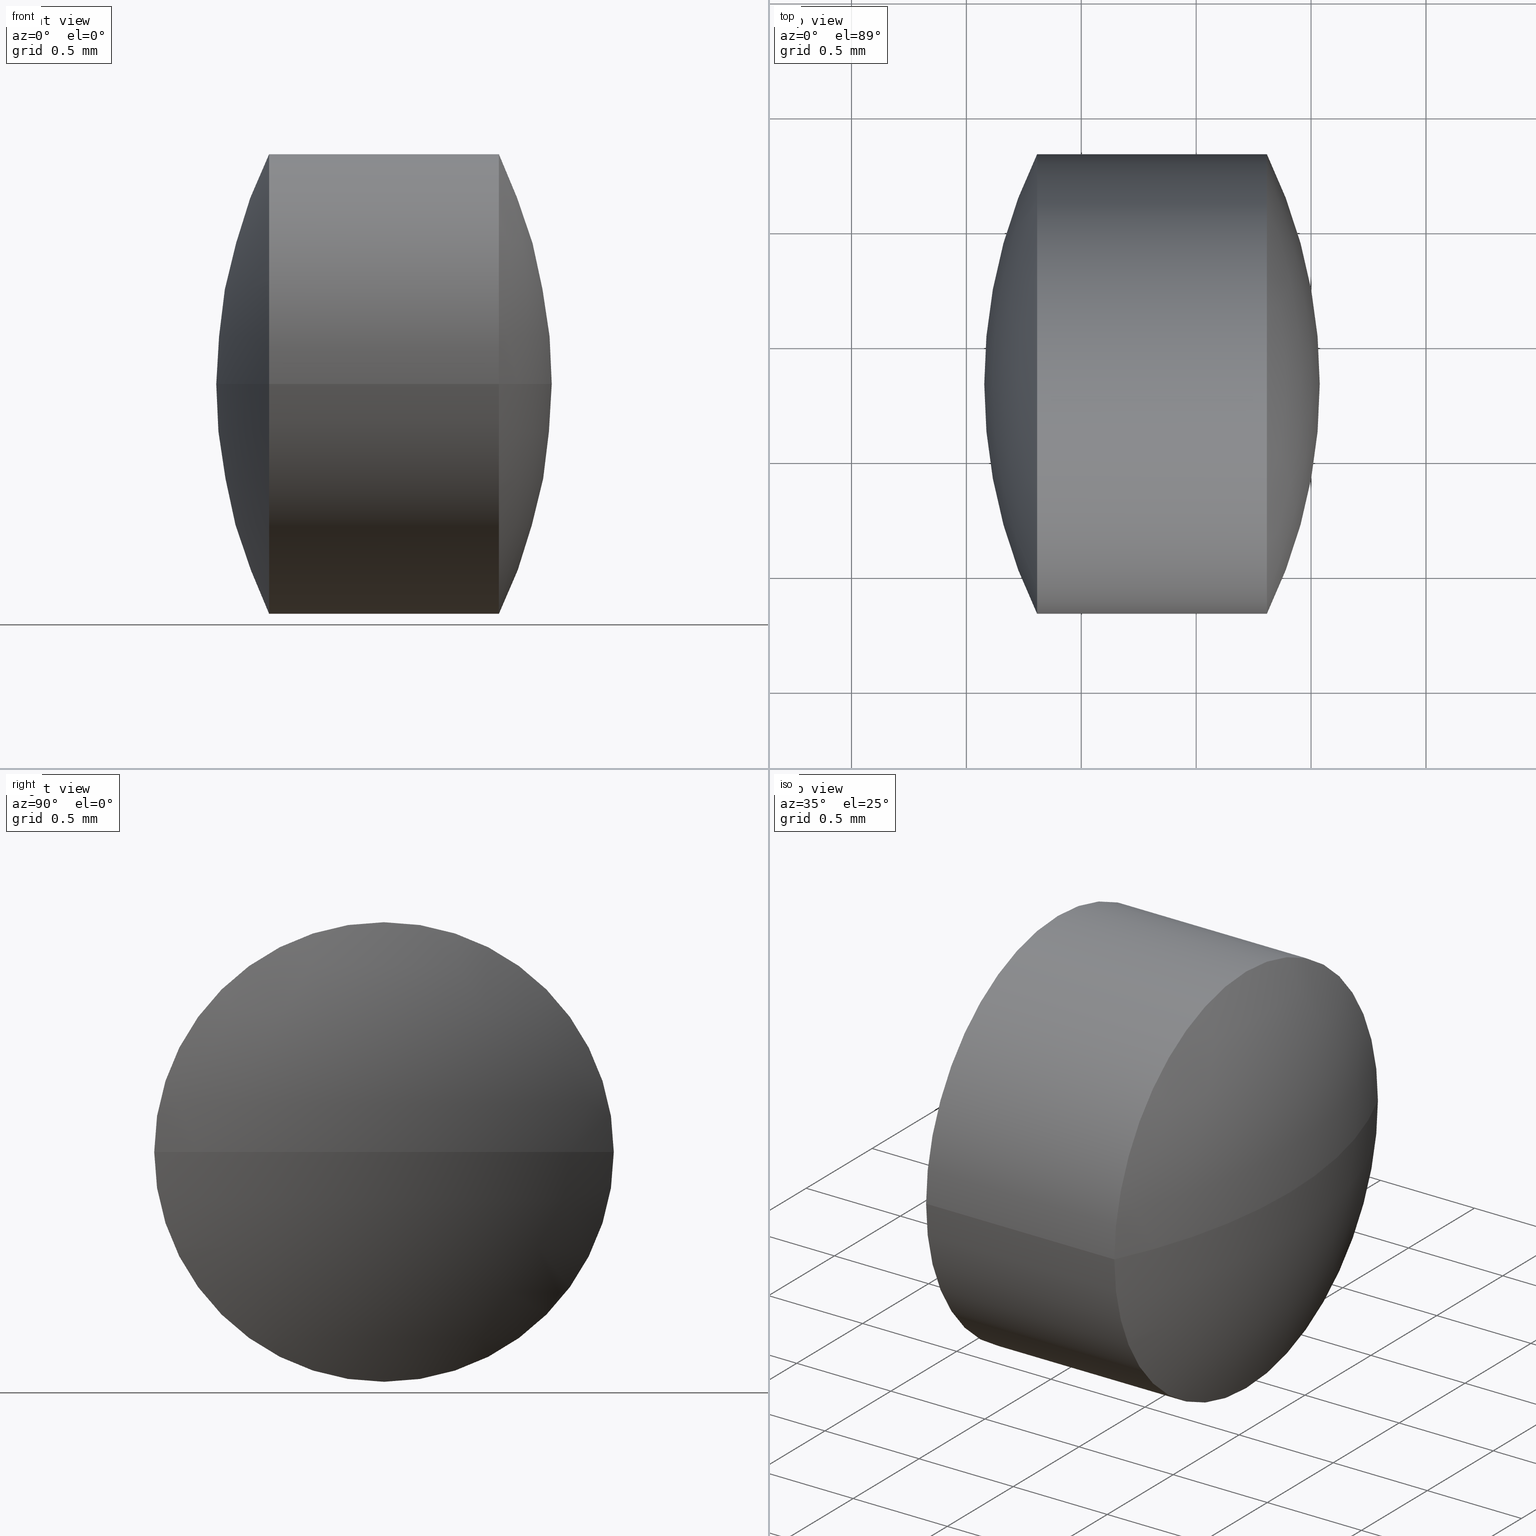
[diagram: canonical four-view strip — front | top / right | iso, engineering-drawing reading convention]
A machine part, canonical four-view strip (front | top / right | iso — engineering-drawing reading convention). The complete STEP part file that produces these views, byte-faithful:
ISO-10303-21;
HEADER;
FILE_DESCRIPTION (( 'STEP AP203' ),
    '1' );
FILE_NAME ('110001.STEP',
    '2019-06-24T01:54:27',
    ( '' ),
    ( '' ),
    'SwSTEP 2.0',
    'SolidWorks 2016',
    '' );
FILE_SCHEMA (( 'CONFIG_CONTROL_DESIGN' ));
ENDSEC;

DATA;
#1 =( LENGTH_UNIT ( ) NAMED_UNIT ( * ) SI_UNIT ( .MILLI., .METRE. ) );
#2 = PERSON_AND_ORGANIZATION ( #80, #31 ) ;
#3 = EDGE_CURVE ( 'NONE', #84, #253, #224, .T. ) ;
#4 = DIRECTION ( 'NONE',  ( 1.214306433183652800E-014, -1.000000000000000000, 0.0000000000000000000 ) ) ;
#5 = DIRECTION ( 'NONE',  ( 1.214306433183652800E-014, -1.000000000000000000, 0.0000000000000000000 ) ) ;
#6 = DIRECTION ( 'NONE',  ( -1.000000000000000000, -1.235158047084468200E-014, -0.0000000000000000000 ) ) ;
#7 = ORIENTED_EDGE ( 'NONE', *, *, #15, .F. ) ;
#8 = CC_DESIGN_PERSON_AND_ORGANIZATION_ASSIGNMENT ( #2, #32, ( #277 ) ) ;
#9 = AXIS2_PLACEMENT_3D ( 'NONE', #215, #73, #285 ) ;
#10 = CARTESIAN_POINT ( 'NONE',  ( 7.307731793281250900, 2.828040395526708400, 0.0000000000000000000 ) ) ;
#11 = APPLICATION_PROTOCOL_DEFINITION ( 'international standard', 'config_control_design', 1994, #291 ) ;
#12 = APPROVAL_PERSON_ORGANIZATION ( #197, #144, #243 ) ;
#13 = CC_DESIGN_APPROVAL ( #67, ( #301 ) ) ;
#14 = APPLICATION_PROTOCOL_DEFINITION ( 'international standard', 'config_control_design', 1994, #61 ) ;
#15 = EDGE_CURVE ( 'NONE', #16, #241, #292, .T. ) ;
#16 = VERTEX_POINT ( 'NONE', #10 ) ;
#17 = AXIS2_PLACEMENT_3D ( 'NONE', #233, #119, #281 ) ;
#18 = LOCAL_TIME ( 9, 54, 27.00000000000000000, #272 ) ;
#19 = PERSON_AND_ORGANIZATION ( #80, #31 ) ;
#20 = AXIS2_PLACEMENT_3D ( 'NONE', #270, #86, #182 ) ;
#21 = ORIENTED_EDGE ( 'NONE', *, *, #208, .T. ) ;
#22 = CC_DESIGN_APPROVAL ( #250, ( #277 ) ) ;
#23 = CLOSED_SHELL ( 'NONE', ( #239, #261, #218, #257, #194, #171 ) ) ;
#24 = CALENDAR_DATE ( 2019, 24, 6 ) ;
#25 = CARTESIAN_POINT ( 'NONE',  ( 5.248818749803096000, 3.828040395526767000, 0.0000000000000000000 ) ) ;
#26 = DIRECTION ( 'NONE',  ( -0.0000000000000000000, 0.0000000000000000000, -1.000000000000000000 ) ) ;
#27 = CIRCLE ( 'NONE', #82, 1.000000000000080200 ) ;
#28 = CC_DESIGN_SECURITY_CLASSIFICATION ( #277, ( #163 ) ) ;
#29 = DIRECTION ( 'NONE',  ( -0.0000000000000000000, 0.0000000000000000000, -1.000000000000000000 ) ) ;
#30 = DATE_TIME_ROLE ( 'classification_date' ) ;
#31 = ORGANIZATION ( 'δָ��', 'δָ��', '' ) ;
#32 = PERSON_AND_ORGANIZATION_ROLE ( 'classification_officer' ) ;
#33 = CC_DESIGN_APPROVAL ( #144, ( #72 ) ) ;
#34 = APPLICATION_PROTOCOL_DEFINITION ( 'international standard', 'config_control_design', 1994, #58 ) ;
#35 = CYLINDRICAL_SURFACE ( 'NONE', #185, 1.000000000000086400 ) ;
#36 = CARTESIAN_POINT ( 'NONE',  ( 0.0000000000000000000, 0.0000000000000000000, 0.0000000000000000000 ) ) ;
#37 = ORIENTED_EDGE ( 'NONE', *, *, #3, .F. ) ;
#38 = APPROVAL_DATE_TIME ( #284, #67 ) ;
#39 = SHAPE_DEFINITION_REPRESENTATION ( #113, #204 ) ;
#40 = COORDINATED_UNIVERSAL_TIME_OFFSET ( 8, 0, .AHEAD. ) ;
#41 = VECTOR ( 'NONE', #221, 1000.000000000000000 ) ;
#42 = APPROVAL_PERSON_ORGANIZATION ( #19, #78, #93 ) ;
#43 = EDGE_CURVE ( 'NONE', #241, #253, #214, .T. ) ;
#44 = CALENDAR_DATE ( 2019, 24, 6 ) ;
#45 = APPROVAL_DATE_TIME ( #116, #118 ) ;
#46 = EDGE_LOOP ( 'NONE', ( #209, #201, #37 ) ) ;
#47 = DIRECTION ( 'NONE',  ( -1.000000000000000000, -1.235158047084468200E-014, -0.0000000000000000000 ) ) ;
#48 = LOCAL_TIME ( 9, 54, 27.00000000000000000, #275 ) ;
#49 = DIRECTION ( 'NONE',  ( -1.000000000000000000, -1.235158047084468200E-014, -0.0000000000000000000 ) ) ;
#50 = CARTESIAN_POINT ( 'NONE',  ( 5.248818749803096000, 3.828040395526767000, 0.0000000000000000000 ) ) ;
#51 = DIRECTION ( 'NONE',  ( 1.214306433183667600E-014, -1.000000000000000000, 0.0000000000000000000 ) ) ;
#52 = PERSON_AND_ORGANIZATION ( #80, #31 ) ;
#53 = CARTESIAN_POINT ( 'NONE',  ( 7.307731793281239300, 3.828040395526784800, 0.0000000000000000000 ) ) ;
#54 = CC_DESIGN_PERSON_AND_ORGANIZATION_ASSIGNMENT ( #162, #148, ( #301 ) ) ;
#55 = ORIENTED_EDGE ( 'NONE', *, *, #273, .F. ) ;
#56 = AXIS2_PLACEMENT_3D ( 'NONE', #138, #29, #190 ) ;
#57 = SECURITY_CLASSIFICATION_LEVEL ( 'unclassified' ) ;
#58 = APPLICATION_CONTEXT ( 'configuration controlled 3d designs of mechanical parts and assemblies' ) ;
#59 = PERSON_AND_ORGANIZATION ( #80, #31 ) ;
#60 = MECHANICAL_CONTEXT ( 'NONE', #200, 'mechanical' ) ;
#61 = APPLICATION_CONTEXT ( 'configuration controlled 3d designs of mechanical parts and assemblies' ) ;
#62 = APPROVAL_PERSON_ORGANIZATION ( #100, #118, #245 ) ;
#63 = AXIS2_PLACEMENT_3D ( 'NONE', #25, #70, #213 ) ;
#64 = LOCAL_TIME ( 9, 54, 27.00000000000000000, #183 ) ;
#65 = AXIS2_PLACEMENT_3D ( 'NONE', #98, #217, #260 ) ;
#66 = ORIENTED_EDGE ( 'NONE', *, *, #172, .T. ) ;
#67 = APPROVAL ( #198, 'δָ��' ) ;
#68 = PERSON_AND_ORGANIZATION_ROLE ( 'creator' ) ;
#69 = CC_DESIGN_PERSON_AND_ORGANIZATION_ASSIGNMENT ( #205, #294, ( #123 ) ) ;
#70 = DIRECTION ( 'NONE',  ( -0.0000000000000000000, 0.0000000000000000000, 1.000000000000000000 ) ) ;
#71 = APPROVAL_DATE_TIME ( #132, #144 ) ;
#72 = PRODUCT_DEFINITION ( 'δ֪', '', #163, #242 ) ;
#73 = DIRECTION ( 'NONE',  ( -1.000000000000000000, -1.235158047084468200E-014, -0.0000000000000000000 ) ) ;
#74 = DIRECTION ( 'NONE',  ( -0.0000000000000000000, 0.0000000000000000000, 1.000000000000000000 ) ) ;
#75 = AXIS2_PLACEMENT_3D ( 'NONE', #186, #26, #164 ) ;
#76 = COORDINATED_UNIVERSAL_TIME_OFFSET ( 8, 0, .AHEAD. ) ;
#77 = PERSON_AND_ORGANIZATION_ROLE ( 'design_owner' ) ;
#78 = APPROVAL ( #165, 'δָ��' ) ;
#79 = LOCAL_TIME ( 9, 54, 27.00000000000000000, #295 ) ;
#80 = PERSON ( 'δָ��', 'δָ��', 'δָ��', ('δָ��'), ('δָ��'), ('δָ��') ) ;
#81 = APPROVAL_STATUS ( 'not_yet_approved' ) ;
#82 = AXIS2_PLACEMENT_3D ( 'NONE', #53, #237, #141 ) ;
#83 = DATE_TIME_ROLE ( 'creation_date' ) ;
#84 = VERTEX_POINT ( 'NONE', #195 ) ;
#85 = EDGE_LOOP ( 'NONE', ( #21, #130, #299, #7 ) ) ;
#86 = DIRECTION ( 'NONE',  ( -0.0000000000000000000, 0.0000000000000000000, 1.000000000000000000 ) ) ;
#87 = FACE_OUTER_BOUND ( 'NONE', #135, .T. ) ;
#88 = LOCAL_TIME ( 9, 54, 27.00000000000000000, #92 ) ;
#89 = PRODUCT_DEFINITION_FORMATION_WITH_SPECIFIED_SOURCE ( '�κ�', '', #146, .NOT_KNOWN. ) ;
#90 = CIRCLE ( 'NONE', #134, 1.000000000000080200 ) ;
#91 = DIRECTION ( 'NONE',  ( 0.0000000000000000000, -1.000000000000000000, -1.224646799147353000E-016 ) ) ;
#92 = COORDINATED_UNIVERSAL_TIME_OFFSET ( 8, 0, .AHEAD. ) ;
#93 = APPROVAL_ROLE ( '' ) ;
#94 = CIRCLE ( 'NONE', #95, 1.000000000000092400 ) ;
#95 = AXIS2_PLACEMENT_3D ( 'NONE', #137, #49, #4 ) ;
#96 = ORIENTED_EDGE ( 'NONE', *, *, #236, .F. ) ;
#97 = APPROVAL_PERSON_ORGANIZATION ( #160, #250, #170 ) ;
#98 = CARTESIAN_POINT ( 'NONE',  ( 5.248818749803096000, 3.828040395526767000, 0.0000000000000000000 ) ) ;
#99 = CARTESIAN_POINT ( 'NONE',  ( 5.854222006274776300, 3.828040395526767000, 0.0000000000000000000 ) ) ;
#100 = PERSON_AND_ORGANIZATION ( #80, #31 ) ;
#101 = SECURITY_CLASSIFICATION_LEVEL ( 'unclassified' ) ;
#102 = AXIS2_PLACEMENT_3D ( 'NONE', #279, #47, #5 ) ;
#103 = DATE_TIME_ROLE ( 'classification_date' ) ;
#104 = CIRCLE ( 'NONE', #300, 2.288913043478189900 ) ;
#105 = PRODUCT ( '110001', '110001', '', ( #174 ) ) ;
#106 = APPROVAL_ROLE ( '' ) ;
#107 = PERSON_AND_ORGANIZATION_ROLE ( 'design_supplier' ) ;
#108 = CC_DESIGN_PERSON_AND_ORGANIZATION_ASSIGNMENT ( #234, #68, ( #72 ) ) ;
#109 = LOCAL_TIME ( 9, 54, 27.00000000000000000, #255 ) ;
#110 = APPROVAL_PERSON_ORGANIZATION ( #169, #67, #267 ) ;
#111 = CC_DESIGN_PERSON_AND_ORGANIZATION_ASSIGNMENT ( #220, #77, ( #146 ) ) ;
#112 = PRODUCT_RELATED_PRODUCT_CATEGORY ( 'detail', '', ( #105 ) ) ;
#113 = PRODUCT_DEFINITION_SHAPE ( 'NONE', 'NONE',  #72 ) ;
#114 = DATE_AND_TIME ( #302, #48 ) ;
#115 = AXIS2_PLACEMENT_3D ( 'NONE', #193, #74, #219 ) ;
#116 = DATE_AND_TIME ( #238, #304 ) ;
#117 = CC_DESIGN_DATE_AND_TIME_ASSIGNMENT ( #126, #232, ( #72 ) ) ;
#118 = APPROVAL ( #127, 'δָ��' ) ;
#119 = DIRECTION ( 'NONE',  ( -1.512632348803089900E-030, 1.224646799147353200E-016, -1.000000000000000000 ) ) ;
#120 = CALENDAR_DATE ( 2019, 24, 6 ) ;
#121 = DATE_AND_TIME ( #142, #166 ) ;
#122 = EDGE_LOOP ( 'NONE', ( #288, #140, #173 ) ) ;
#123 = PRODUCT_DEFINITION ( 'δ֪', '', #89, #202 ) ;
#124 = MANIFOLD_SOLID_BREP ( '��ת1', #23 ) ;
#125 = DIRECTION ( 'NONE',  ( 1.000000000000000000, 0.0000000000000000000, 0.0000000000000000000 ) ) ;
#126 = DATE_AND_TIME ( #249, #167 ) ;
#127 = APPROVAL_STATUS ( 'not_yet_approved' ) ;
#128 =( GEOMETRIC_REPRESENTATION_CONTEXT ( 3 ) GLOBAL_UNCERTAINTY_ASSIGNED_CONTEXT ( ( #143 ) ) GLOBAL_UNIT_ASSIGNED_CONTEXT ( ( #1, #296, #269 ) ) REPRESENTATION_CONTEXT ( 'NONE', 'WORKASPACE' ) );
#129 = DIRECTION ( 'NONE',  ( 1.000000000000000000, 0.0000000000000000000, 0.0000000000000000000 ) ) ;
#130 = ORIENTED_EDGE ( 'NONE', *, *, #273, .T. ) ;
#131 = PRODUCT_RELATED_PRODUCT_CATEGORY ( 'detail', '', ( #146 ) ) ;
#132 = DATE_AND_TIME ( #188, #79 ) ;
#133 = CIRCLE ( 'NONE', #102, 1.000000000000092400 ) ;
#134 = AXIS2_PLACEMENT_3D ( 'NONE', #235, #256, #51 ) ;
#135 = EDGE_LOOP ( 'NONE', ( #192, #66, #150 ) ) ;
#136 = APPROVAL_DATE_TIME ( #265, #286 ) ;
#137 = CARTESIAN_POINT ( 'NONE',  ( 6.307731793281238500, 3.828040395526772800, 0.0000000000000000000 ) ) ;
#138 = CARTESIAN_POINT ( 'NONE',  ( 8.366644836758903000, 3.828040395526791000, 0.0000000000000000000 ) ) ;
#139 = VERTEX_POINT ( 'NONE', #151 ) ;
#140 = ORIENTED_EDGE ( 'NONE', *, *, #155, .T. ) ;
#141 = DIRECTION ( 'NONE',  ( 1.214306433183667600E-014, -1.000000000000000000, 0.0000000000000000000 ) ) ;
#142 = CALENDAR_DATE ( 2019, 24, 6 ) ;
#143 = UNCERTAINTY_MEASURE_WITH_UNIT (LENGTH_MEASURE( 1.000000000000000100E-005 ), #1, 'distance_accuracy_value', 'NONE');
#144 = APPROVAL ( #81, 'δָ��' ) ;
#145 = DIRECTION ( 'NONE',  ( 0.0000000000000000000, 0.0000000000000000000, 1.000000000000000000 ) ) ;
#146 = PRODUCT ( '110001', '110001', '', ( #60 ) ) ;
#147 = CIRCLE ( 'NONE', #65, 2.288913043478189900 ) ;
#148 = PERSON_AND_ORGANIZATION_ROLE ( 'classification_officer' ) ;
#149 = CC_DESIGN_PERSON_AND_ORGANIZATION_ASSIGNMENT ( #226, #268, ( #89 ) ) ;
#150 = ORIENTED_EDGE ( 'NONE', *, *, #208, .F. ) ;
#151 = CARTESIAN_POINT ( 'NONE',  ( 7.307731793281226900, 4.828040395526868700, 1.224646799147445900E-016 ) ) ;
#152 = PERSON_AND_ORGANIZATION ( #80, #31 ) ;
#153 = VECTOR ( 'NONE', #254, 1000.000000000000000 ) ;
#154 = CC_DESIGN_APPROVAL ( #118, ( #89 ) ) ;
#155 = EDGE_CURVE ( 'NONE', #246, #16, #147, .T. ) ;
#156 = PERSON_AND_ORGANIZATION ( #80, #31 ) ;
#157 = SPHERICAL_SURFACE ( 'NONE', #56, 2.288913043477780500 ) ;
#158 = EDGE_CURVE ( 'NONE', #139, #16, #27, .T. ) ;
#159 = ORIENTED_EDGE ( 'NONE', *, *, #43, .F. ) ;
#160 = PERSON_AND_ORGANIZATION ( #80, #31 ) ;
#161 = DATE_AND_TIME ( #44, #18 ) ;
#162 = PERSON_AND_ORGANIZATION ( #80, #31 ) ;
#163 = PRODUCT_DEFINITION_FORMATION_WITH_SPECIFIED_SOURCE ( '�κ�', '', #105, .NOT_KNOWN. ) ;
#164 = DIRECTION ( 'NONE',  ( -1.212609438996293800E-014, 1.000000000000000000, 0.0000000000000000000 ) ) ;
#165 = APPROVAL_STATUS ( 'not_yet_approved' ) ;
#166 = LOCAL_TIME ( 9, 54, 27.00000000000000000, #76 ) ;
#167 = LOCAL_TIME ( 9, 54, 27.00000000000000000, #229 ) ;
#168 = DIRECTION ( 'NONE',  ( 1.214306433183660000E-014, -1.000000000000000000, 0.0000000000000000000 ) ) ;
#169 = PERSON_AND_ORGANIZATION ( #80, #31 ) ;
#170 = APPROVAL_ROLE ( '' ) ;
#171 = ADVANCED_FACE ( 'NONE', ( #207 ), #35, .T. ) ;
#172 = EDGE_CURVE ( 'NONE', #246, #139, #104, .T. ) ;
#173 = ORIENTED_EDGE ( 'NONE', *, *, #158, .F. ) ;
#174 = MECHANICAL_CONTEXT ( 'NONE', #291, 'mechanical' ) ;
#175 = CC_DESIGN_PERSON_AND_ORGANIZATION_ASSIGNMENT ( #216, #266, ( #163 ) ) ;
#176 = APPROVAL_STATUS ( 'not_yet_approved' ) ;
#177 = CALENDAR_DATE ( 2019, 24, 6 ) ;
#178 = AXIS2_PLACEMENT_3D ( 'NONE', #36, #145, #125 ) ;
#179 = CARTESIAN_POINT ( 'NONE',  ( 0.0000000000000000000, 0.0000000000000000000, 0.0000000000000000000 ) ) ;
#180 = CARTESIAN_POINT ( 'NONE',  ( 6.077731793281122600, 3.828040395526763000, 0.0000000000000000000 ) ) ;
#181 = COORDINATED_UNIVERSAL_TIME_OFFSET ( 8, 0, .AHEAD. ) ;
#182 = DIRECTION ( 'NONE',  ( 1.000000000000000000, 0.0000000000000000000, 0.0000000000000000000 ) ) ;
#183 = COORDINATED_UNIVERSAL_TIME_OFFSET ( 8, 0, .AHEAD. ) ;
#184 = EDGE_LOOP ( 'NONE', ( #159, #278, #187 ) ) ;
#185 = AXIS2_PLACEMENT_3D ( 'NONE', #99, #6, #168 ) ;
#186 = CARTESIAN_POINT ( 'NONE',  ( 8.366644836758903000, 3.828040395526791000, 0.0000000000000000000 ) ) ;
#187 = ORIENTED_EDGE ( 'NONE', *, *, #3, .T. ) ;
#188 = CALENDAR_DATE ( 2019, 24, 6 ) ;
#189 = CARTESIAN_POINT ( 'NONE',  ( 5.854222006274787800, 2.828040395526680900, 0.0000000000000000000 ) ) ;
#190 = DIRECTION ( 'NONE',  ( -1.212609438996293800E-014, 1.000000000000000000, 0.0000000000000000000 ) ) ;
#191 = CARTESIAN_POINT ( 'NONE',  ( 6.307731793281251800, 2.828040395526657300, -1.224646799147485600E-016 ) ) ;
#192 = ORIENTED_EDGE ( 'NONE', *, *, #155, .F. ) ;
#193 = CARTESIAN_POINT ( 'NONE',  ( 5.248818749803096000, 3.828040395526767000, 0.0000000000000000000 ) ) ;
#194 = ADVANCED_FACE ( 'NONE', ( #228 ), #280, .T. ) ;
#195 = CARTESIAN_POINT ( 'NONE',  ( 6.307731793281227800, 4.828040395526881100, 0.0000000000000000000 ) ) ;
#196 = APPLICATION_PROTOCOL_DEFINITION ( 'international standard', 'config_control_design', 1994, #200 ) ;
#197 = PERSON_AND_ORGANIZATION ( #80, #31 ) ;
#198 = APPROVAL_STATUS ( 'not_yet_approved' ) ;
#199 = DIRECTION ( 'NONE',  ( 0.0000000000000000000, 0.0000000000000000000, 1.000000000000000000 ) ) ;
#200 = APPLICATION_CONTEXT ( 'configuration controlled 3d designs of mechanical parts and assemblies' ) ;
#201 = ORIENTED_EDGE ( 'NONE', *, *, #43, .T. ) ;
#202 = DESIGN_CONTEXT ( 'detailed design', #61, 'design' ) ;
#203 = SPHERICAL_SURFACE ( 'NONE', #75, 2.288913043477780500 ) ;
#204 = ADVANCED_BREP_SHAPE_REPRESENTATION ( '110001', ( #124, #231 ), #128 ) ;
#205 = PERSON_AND_ORGANIZATION ( #80, #31 ) ;
#206 = PRODUCT_DEFINITION_SHAPE ( 'NONE', 'NONE',  #123 ) ;
#207 = FACE_OUTER_BOUND ( 'NONE', #252, .T. ) ;
#208 = EDGE_CURVE ( 'NONE', #16, #139, #90, .T. ) ;
#209 = ORIENTED_EDGE ( 'NONE', *, *, #236, .T. ) ;
#210 = SPHERICAL_SURFACE ( 'NONE', #63, 2.288913043478189900 ) ;
#211 = APPROVAL_DATE_TIME ( #161, #250 ) ;
#212 = APPROVAL_PERSON_ORGANIZATION ( #156, #286, #106 ) ;
#213 = DIRECTION ( 'NONE',  ( 1.250503483964704600E-014, -1.000000000000000000, 0.0000000000000000000 ) ) ;
#214 = CIRCLE ( 'NONE', #17, 2.288913043477780900 ) ;
#215 = CARTESIAN_POINT ( 'NONE',  ( 5.854222006274776300, 3.828040395526767000, 0.0000000000000000000 ) ) ;
#216 = PERSON_AND_ORGANIZATION ( #80, #31 ) ;
#217 = DIRECTION ( 'NONE',  ( 0.0000000000000000000, 0.0000000000000000000, -1.000000000000000000 ) ) ;
#218 = ADVANCED_FACE ( 'NONE', ( #222 ), #157, .T. ) ;
#219 = DIRECTION ( 'NONE',  ( 1.250503483964704600E-014, -1.000000000000000000, 0.0000000000000000000 ) ) ;
#220 = PERSON_AND_ORGANIZATION ( #80, #31 ) ;
#221 = DIRECTION ( 'NONE',  ( -1.000000000000000000, -1.235158047084468200E-014, -0.0000000000000000000 ) ) ;
#222 = FACE_OUTER_BOUND ( 'NONE', #46, .T. ) ;
#223 = PERSON_AND_ORGANIZATION_ROLE ( 'design_owner' ) ;
#224 = CIRCLE ( 'NONE', #20, 2.288913043477780500 ) ;
#225 = DATE_AND_TIME ( #177, #109 ) ;
#226 = PERSON_AND_ORGANIZATION ( #80, #31 ) ;
#227 = CC_DESIGN_PERSON_AND_ORGANIZATION_ASSIGNMENT ( #52, #107, ( #89 ) ) ;
#228 = FACE_OUTER_BOUND ( 'NONE', #122, .T. ) ;
#229 = COORDINATED_UNIVERSAL_TIME_OFFSET ( 8, 0, .AHEAD. ) ;
#230 = CALENDAR_DATE ( 2019, 24, 6 ) ;
#231 = AXIS2_PLACEMENT_3D ( 'NONE', #179, #199, #129 ) ;
#232 = DATE_TIME_ROLE ( 'creation_date' ) ;
#233 = CARTESIAN_POINT ( 'NONE',  ( 8.366644836758903000, 3.828040395526791000, 0.0000000000000000000 ) ) ;
#234 = PERSON_AND_ORGANIZATION ( #80, #31 ) ;
#235 = CARTESIAN_POINT ( 'NONE',  ( 7.307731793281239300, 3.828040395526784800, 0.0000000000000000000 ) ) ;
#236 = EDGE_CURVE ( 'NONE', #84, #241, #94, .T. ) ;
#237 = DIRECTION ( 'NONE',  ( -1.000000000000000000, -1.235158047084468200E-014, -0.0000000000000000000 ) ) ;
#238 = CALENDAR_DATE ( 2019, 24, 6 ) ;
#239 = ADVANCED_FACE ( 'NONE', ( #274 ), #271, .T. ) ;
#240 = DIRECTION ( 'NONE',  ( 1.512632348803089900E-030, -1.224646799147353200E-016, 1.000000000000000000 ) ) ;
#241 = VERTEX_POINT ( 'NONE', #191 ) ;
#242 = DESIGN_CONTEXT ( 'detailed design', #58, 'design' ) ;
#243 = APPROVAL_ROLE ( '' ) ;
#244 = APPROVAL_DATE_TIME ( #114, #78 ) ;
#245 = APPROVAL_ROLE ( '' ) ;
#246 = VERTEX_POINT ( 'NONE', #259 ) ;
#247 = CC_DESIGN_SECURITY_CLASSIFICATION ( #301, ( #89 ) ) ;
#248 = ORIENTED_EDGE ( 'NONE', *, *, #158, .T. ) ;
#249 = CALENDAR_DATE ( 2019, 24, 6 ) ;
#250 = APPROVAL ( #289, 'δָ��' ) ;
#251 = CC_DESIGN_PERSON_AND_ORGANIZATION_ASSIGNMENT ( #59, #223, ( #105 ) ) ;
#252 = EDGE_LOOP ( 'NONE', ( #55, #248, #258, #96 ) ) ;
#253 = VERTEX_POINT ( 'NONE', #180 ) ;
#254 = DIRECTION ( 'NONE',  ( -1.000000000000000000, -1.235158047084468200E-014, -0.0000000000000000000 ) ) ;
#255 = COORDINATED_UNIVERSAL_TIME_OFFSET ( 8, 0, .AHEAD. ) ;
#256 = DIRECTION ( 'NONE',  ( -1.000000000000000000, -1.235158047084468200E-014, -0.0000000000000000000 ) ) ;
#257 = ADVANCED_FACE ( 'NONE', ( #276 ), #203, .T. ) ;
#258 = ORIENTED_EDGE ( 'NONE', *, *, #15, .T. ) ;
#259 = CARTESIAN_POINT ( 'NONE',  ( 7.537731793281286000, 3.828040395526795400, 0.0000000000000000000 ) ) ;
#260 = DIRECTION ( 'NONE',  ( -1.000000000000000000, 0.0000000000000000000, 0.0000000000000000000 ) ) ;
#261 = ADVANCED_FACE ( 'NONE', ( #87 ), #210, .T. ) ;
#262 = LINE ( 'NONE', #305, #153 ) ;
#263 = CC_DESIGN_APPROVAL ( #78, ( #163 ) ) ;
#264 = CC_DESIGN_APPROVAL ( #286, ( #123 ) ) ;
#265 = DATE_AND_TIME ( #24, #88 ) ;
#266 = PERSON_AND_ORGANIZATION_ROLE ( 'design_supplier' ) ;
#267 = APPROVAL_ROLE ( '' ) ;
#268 = PERSON_AND_ORGANIZATION_ROLE ( 'creator' ) ;
#269 =( NAMED_UNIT ( * ) SI_UNIT ( $, .STERADIAN. ) SOLID_ANGLE_UNIT ( ) );
#270 = CARTESIAN_POINT ( 'NONE',  ( 8.366644836758903000, 3.828040395526791000, 0.0000000000000000000 ) ) ;
#271 = CYLINDRICAL_SURFACE ( 'NONE', #9, 1.000000000000086400 ) ;
#272 = COORDINATED_UNIVERSAL_TIME_OFFSET ( 8, 0, .AHEAD. ) ;
#273 = EDGE_CURVE ( 'NONE', #139, #84, #262, .T. ) ;
#274 = FACE_OUTER_BOUND ( 'NONE', #85, .T. ) ;
#275 = COORDINATED_UNIVERSAL_TIME_OFFSET ( 8, 0, .AHEAD. ) ;
#276 = FACE_OUTER_BOUND ( 'NONE', #184, .T. ) ;
#277 = SECURITY_CLASSIFICATION ( '', '', #101 ) ;
#278 = ORIENTED_EDGE ( 'NONE', *, *, #293, .T. ) ;
#279 = CARTESIAN_POINT ( 'NONE',  ( 6.307731793281238500, 3.828040395526772800, 0.0000000000000000000 ) ) ;
#280 = SPHERICAL_SURFACE ( 'NONE', #115, 2.288913043478189900 ) ;
#281 = DIRECTION ( 'NONE',  ( 0.0000000000000000000, 1.000000000000000000, 1.224646799147353000E-016 ) ) ;
#282 = CC_DESIGN_DATE_AND_TIME_ASSIGNMENT ( #225, #30, ( #277 ) ) ;
#283 = PERSON_AND_ORGANIZATION_ROLE ( 'creator' ) ;
#284 = DATE_AND_TIME ( #120, #64 ) ;
#285 = DIRECTION ( 'NONE',  ( 1.214306433183660000E-014, -1.000000000000000000, 0.0000000000000000000 ) ) ;
#286 = APPROVAL ( #176, 'δָ��' ) ;
#287 = DATE_AND_TIME ( #230, #297 ) ;
#288 = ORIENTED_EDGE ( 'NONE', *, *, #172, .F. ) ;
#289 = APPROVAL_STATUS ( 'not_yet_approved' ) ;
#290 = CC_DESIGN_DATE_AND_TIME_ASSIGNMENT ( #287, #103, ( #301 ) ) ;
#291 = APPLICATION_CONTEXT ( 'configuration controlled 3d designs of mechanical parts and assemblies' ) ;
#292 = LINE ( 'NONE', #189, #41 ) ;
#293 = EDGE_CURVE ( 'NONE', #241, #84, #133, .T. ) ;
#294 = PERSON_AND_ORGANIZATION_ROLE ( 'creator' ) ;
#295 = COORDINATED_UNIVERSAL_TIME_OFFSET ( 8, 0, .AHEAD. ) ;
#296 =( NAMED_UNIT ( * ) PLANE_ANGLE_UNIT ( ) SI_UNIT ( $, .RADIAN. ) );
#297 = LOCAL_TIME ( 9, 54, 27.00000000000000000, #181 ) ;
#298 = CC_DESIGN_PERSON_AND_ORGANIZATION_ASSIGNMENT ( #152, #283, ( #163 ) ) ;
#299 = ORIENTED_EDGE ( 'NONE', *, *, #293, .F. ) ;
#300 = AXIS2_PLACEMENT_3D ( 'NONE', #50, #240, #91 ) ;
#301 = SECURITY_CLASSIFICATION ( '', '', #57 ) ;
#302 = CALENDAR_DATE ( 2019, 24, 6 ) ;
#303 = CC_DESIGN_DATE_AND_TIME_ASSIGNMENT ( #121, #83, ( #123 ) ) ;
#304 = LOCAL_TIME ( 9, 54, 27.00000000000000000, #40 ) ;
#305 = CARTESIAN_POINT ( 'NONE',  ( 5.854222006274763900, 4.828040395526852700, 1.224646799147458700E-016 ) ) ;
ENDSEC;
END-ISO-10303-21;
